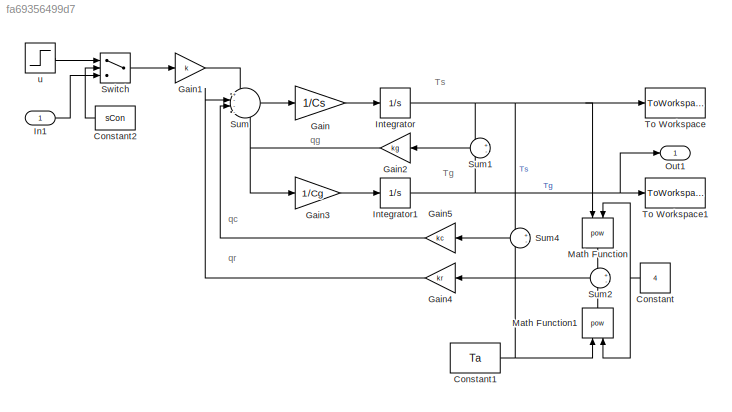
MODEL slx_fa69356499d7
KIND model
CONFIG AbsTol = auto
CONFIG EnableMultiTasking = off
CONFIG FixedStep = auto
CONFIG MaxStep = auto
CONFIG MinStep = auto
CONFIG RelTol = 1e-3
CONFIG SampleTimeConstraint = Unconstrained
CONFIG Solver = VariableStepAuto
CONFIG SolverName = VariableStepAuto
CONFIG StartTime = 0.0
CONFIG StopTime = 10000
BLOCK [Constant] Constant
  Value = 4
BLOCK [Constant] Constant1
  NameLocation = top
  Value = Ta
BLOCK [Constant] Constant2
  Value = sCon
BLOCK [Gain] Gain
  Gain = 1/Cs
BLOCK [Gain] Gain1
  Gain = k
BLOCK [Gain] Gain2
  Gain = kg
BLOCK [Gain] Gain3
  Gain = 1/Cg
BLOCK [Gain] Gain4
  Gain = kr
BLOCK [Gain] Gain5
  Gain = kc
BLOCK [Inport] In1
BLOCK [Integrator] Integrator
  InitialCondition = 473.15
  Ports = [1, 1]
  Priority = 1
BLOCK [Integrator] Integrator1
  InitialCondition = 298.15
  Ports = [1, 1]
  Priority = 2
BLOCK [Math] Math Function
  NameLocation = left
  Operator = pow
  Ports = [2, 1]
  SignedPower = on
BLOCK [Math] Math Function1
  NameLocation = right
  Operator = pow
  Ports = [2, 1]
  SignedPower = on
BLOCK [Outport] Out1
BLOCK [Sum] Sum
  Inputs = +---
  Ports = [4, 1]
BLOCK [Sum] Sum1
  Inputs = +-
  Ports = [2, 1]
BLOCK [Sum] Sum2
  Inputs = +-
  Ports = [2, 1]
BLOCK [Sum] Sum4
  Inputs = +-
  Ports = [2, 1]
BLOCK [Switch] Switch
  Criteria = u2 > Threshold
  InputSameDT = off
  SaturateOnIntegerOverflow = off
BLOCK [ToWorkspace] To Workspace
  MaxDataPoints = inf
  Ports = [1]
  SampleTime = -1
  SaveFormat = Structure With Time
  VariableName = Ts_out
BLOCK [ToWorkspace] To Workspace1
  MaxDataPoints = inf
  Ports = [1]
  SampleTime = -1
  SaveFormat = Structure With Time
  VariableName = Tg_out
BLOCK [Step] u
  After = u0
  Before = u0
  SampleTime = 0
  Time = 0
ANNOTATION (root): Tg
ANNOTATION (root): Ts
ANNOTATION (root): qc
ANNOTATION (root): qg
ANNOTATION (root): qr
NET Constant1:1 -> Math Function1:1, Sum4:2
LINE Constant2:1 -> Switch:2
NET Constant:1 -> Math Function1:2, Math Function:2
LINE Gain1:1 -> Sum:1
NET Gain2:1 -> Gain3:1, Sum:4
LINE Gain3:1 -> Integrator1:1
LINE Gain4:1 -> Sum:2
LINE Gain5:1 -> Sum:3
LINE Gain:1 -> Integrator:1
LINE In1:1 -> Switch:3
NET Integrator1:1 -> Out1:1, Sum1:2, To Workspace1:1
NET Integrator:1 -> Math Function:1, Sum1:1, Sum4:1, To Workspace:1
LINE Math Function1:1 -> Sum2:2
LINE Math Function:1 -> Sum2:1
LINE Sum1:1 -> Gain2:1
LINE Sum2:1 -> Gain4:1
LINE Sum4:1 -> Gain5:1
LINE Sum:1 -> Gain:1
LINE Switch:1 -> Gain1:1
LINE u:1 -> Switch:1
note: NET lines group one-source signal fan-out (src -> all destinations, sorted); 1:1 wires keep LINE
